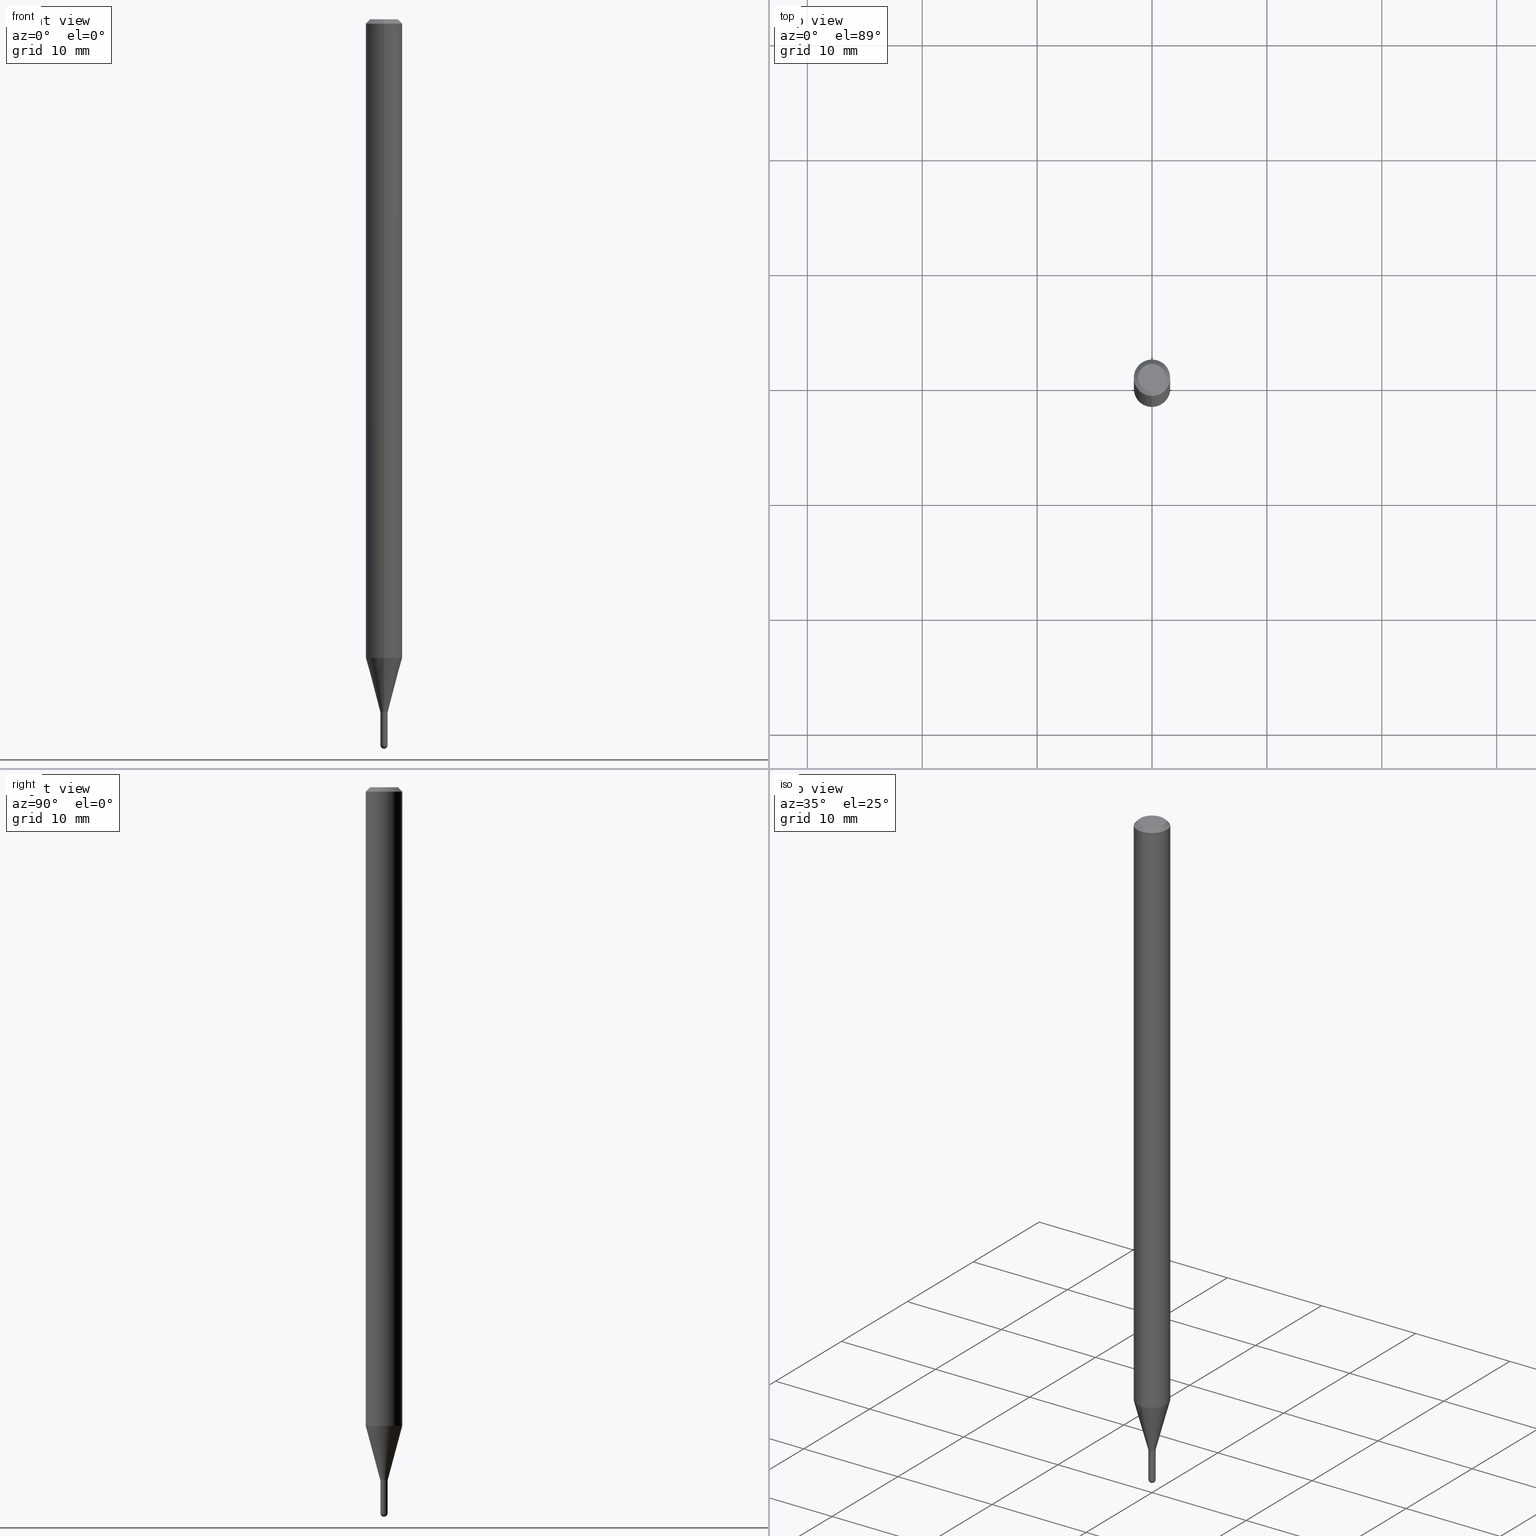
[diagram: canonical four-view strip — front | top / right | iso, engineering-drawing reading convention]
A machine part, canonical four-view strip (front | top / right | iso — engineering-drawing reading convention). The complete STEP part file that produces these views, byte-faithful:
ISO-10303-21;
HEADER;
FILE_DESCRIPTION (( 'STEP AP203' ),
    '1' );
FILE_NAME ('01502.STEP',
    '2024-03-07T19:35:38',
    ( '' ),
    ( '' ),
    'SwSTEP 2.0',
    'SolidWorks 2023',
    '' );
FILE_SCHEMA (( 'CONFIG_CONTROL_DESIGN' ));
ENDSEC;

DATA;
#1 = CARTESIAN_POINT ( 'NONE',  ( 5.807806707134409202E-29, -8.292528395313797988E-15, -2.375000000000000000 ) ) ;
#2 = CARTESIAN_POINT ( 'NONE',  ( 5.807806707134409202E-29, -8.292528395313797988E-15, -2.375000000000000000 ) ) ;
#3 = LOCAL_TIME ( 14, 35, 38.00000000000000000, #85 ) ;
#4 = DIRECTION ( 'NONE',  ( -2.445468806185136597E-29, 3.491481338843145583E-15, 1.000000000000000000 ) ) ;
#5 = AXIS2_PLACEMENT_3D ( 'NONE', #29, #234, #114 ) ;
#6 = EDGE_LOOP ( 'NONE', ( #388, #9, #479, #171 ) ) ;
#7 = FACE_OUTER_BOUND ( 'NONE', #48, .T. ) ;
#8 = EDGE_CURVE ( 'NONE', #420, #470, #237, .T. ) ;
#9 = ORIENTED_EDGE ( 'NONE', *, *, #344, .T. ) ;
#10 = FACE_OUTER_BOUND ( 'NONE', #236, .T. ) ;
#11 = ORIENTED_EDGE ( 'NONE', *, *, #89, .F. ) ;
#12 = AXIS2_PLACEMENT_3D ( 'NONE', #385, #101, #259 ) ;
#13 = VERTEX_POINT ( 'NONE', #184 ) ;
#14 = APPLICATION_PROTOCOL_DEFINITION ( 'international standard', 'config_control_design', 1994, #80 ) ;
#15 = VECTOR ( 'NONE', #79, 39.37007874015748143 ) ;
#16 = EDGE_CURVE ( 'NONE', #435, #504, #341, .T. ) ;
#17 = DIRECTION ( 'NONE',  ( 6.982962677686266711E-15, 1.000000000000000000, 0.000000000000000000 ) ) ;
#18 = CARTESIAN_POINT ( 'NONE',  ( 8.728703347113906385E-17, 0.01249999999999129932, -2.487500000000000266 ) ) ;
#19 = SECURITY_CLASSIFICATION_LEVEL ( 'unclassified' ) ;
#20 = CARTESIAN_POINT ( 'NONE',  ( 5.806584010985539182E-29, -8.290782599862154169E-15, -2.374500000000000277 ) ) ;
#21 = DATE_AND_TIME ( #498, #358 ) ;
#22 = FACE_OUTER_BOUND ( 'NONE', #287, .T. ) ;
#23 = CARTESIAN_POINT ( 'NONE',  ( 3.668088446611208352E-31, -5.237386354935034008E-17, -0.01500000000000000812 ) ) ;
#24 = CC_DESIGN_PERSON_AND_ORGANIZATION_ASSIGNMENT ( #459, #223, ( #151 ) ) ;
#25 = AXIS2_PLACEMENT_3D ( 'NONE', #23, #93, #224 ) ;
#26 = ORIENTED_EDGE ( 'NONE', *, *, #39, .T. ) ;
#27 = CARTESIAN_POINT ( 'NONE',  ( 6.113137536532105565E-29, -8.729468751357331880E-15, -2.500000000000000000 ) ) ;
#28 = ADVANCED_FACE ( 'NONE', ( #460 ), #141, .T. ) ;
#29 = CARTESIAN_POINT ( 'NONE',  ( 5.807806707134409202E-29, -8.292528395313797988E-15, -2.375000000000000000 ) ) ;
#30 = DIRECTION ( 'NONE',  ( -2.445392297740803594E-29, 3.491590903290020766E-15, 1.000000000000000000 ) ) ;
#31 = CARTESIAN_POINT ( 'NONE',  ( 3.668088446611208352E-31, -5.237386354935034008E-17, -0.01500000000000000812 ) ) ;
#32 = EDGE_LOOP ( 'NONE', ( #501, #215, #427, #185 ) ) ;
#33 = ORIENTED_EDGE ( 'NONE', *, *, #421, .F. ) ;
#34 = AXIS2_PLACEMENT_3D ( 'NONE', #134, #62, #98 ) ;
#35 = CARTESIAN_POINT ( 'NONE',  ( 8.526512829127010396E-17, 0.01199999999999171001, -2.375000000000000000 ) ) ;
#36 = ADVANCED_FACE ( 'NONE', ( #335 ), #300, .T. ) ;
#37 = DIRECTION ( 'NONE',  ( -6.982962677686265922E-15, -1.000000000000000000, 0.000000000000000000 ) ) ;
#38 = DIRECTION ( 'NONE',  ( -6.982962677686265922E-15, -1.000000000000000000, 0.000000000000000000 ) ) ;
#39 = EDGE_CURVE ( 'NONE', #486, #435, #337, .T. ) ;
#40 = CONICAL_SURFACE ( 'NONE', #222, 0.01249999999999992437, 0.2617993877991578455 ) ;
#41 = CIRCLE ( 'NONE', #50, 0.01249999999999996947 ) ;
#42 = DIRECTION ( 'NONE',  ( -1.000000000000000000, 6.982962677686265922E-15, -4.876176775795935793E-29 ) ) ;
#43 = AXIS2_PLACEMENT_3D ( 'NONE', #94, #449, #91 ) ;
#44 = PERSON_AND_ORGANIZATION_ROLE ( 'creator' ) ;
#45 = ORIENTED_EDGE ( 'NONE', *, *, #172, .F. ) ;
#46 = DIRECTION ( 'NONE',  ( -2.445468806185136597E-29, 3.491481338843145583E-15, 1.000000000000000000 ) ) ;
#47 = DIRECTION ( 'NONE',  ( -2.445392297740803875E-29, 3.491590903290020371E-15, 1.000000000000000000 ) ) ;
#48 = EDGE_LOOP ( 'NONE', ( #442, #507, #250, #154 ) ) ;
#49 = AXIS2_PLACEMENT_3D ( 'NONE', #247, #4, #203 ) ;
#50 = AXIS2_PLACEMENT_3D ( 'NONE', #201, #197, #389 ) ;
#51 = LINE ( 'NONE', #217, #147 ) ;
#52 =( LENGTH_UNIT ( ) NAMED_UNIT ( * ) SI_UNIT ( $, .METRE. ) );
#53 = CYLINDRICAL_SURFACE ( 'NONE', #375, 0.01250000000000000243 ) ;
#54 = EDGE_CURVE ( 'NONE', #230, #392, #475, .T. ) ;
#55 = AXIS2_PLACEMENT_3D ( 'NONE', #405, #46, #370 ) ;
#56 = CALENDAR_DATE ( 2024, 7, 3 ) ;
#57 = CARTESIAN_POINT ( 'NONE',  ( 6.082034697524054086E-29, -8.686590638871258861E-15, -2.487500000000000266 ) ) ;
#58 = CC_DESIGN_APPROVAL ( #148, ( #445 ) ) ;
#59 = ORIENTED_EDGE ( 'NONE', *, *, #312, .T. ) ;
#60 = CC_DESIGN_DATE_AND_TIME_ASSIGNMENT ( #21, #87, ( #151 ) ) ;
#61 = APPROVAL_DATE_TIME ( #422, #244 ) ;
#62 = DIRECTION ( 'NONE',  ( 2.445392297740803875E-29, -3.491590903290020371E-15, -1.000000000000000000 ) ) ;
#63 = PERSON ( 'UNSPECIFIED', 'UNSPECIFIED', 'UNSPECIFIED', ('UNSPECIFIED'), ('UNSPECIFIED'), ('UNSPECIFIED') ) ;
#64 = SPHERICAL_SURFACE ( 'NONE', #205, 0.01249999999999996947 ) ;
#65 = EDGE_CURVE ( 'NONE', #504, #435, #362, .T. ) ;
#66 = AXIS2_PLACEMENT_3D ( 'NONE', #302, #491, #264 ) ;
#67 = CLOSED_SHELL ( 'NONE', ( #162, #28, #433, #179, #326 ) ) ;
#68 = CARTESIAN_POINT ( 'NONE',  ( 0.000000000000000000, 0.000000000000000000, 0.000000000000000000 ) ) ;
#69 = CIRCLE ( 'NONE', #55, 0.01250000000000000243 ) ;
#70 = VECTOR ( 'NONE', #319, 39.37007874015748143 ) ;
#71 = ORIENTED_EDGE ( 'NONE', *, *, #82, .T. ) ;
#72 = FACE_OUTER_BOUND ( 'NONE', #324, .T. ) ;
#73 = DIRECTION ( 'NONE',  ( -2.445392297740803875E-29, 3.491590903290020371E-15, 1.000000000000000000 ) ) ;
#74 = ORIENTED_EDGE ( 'NONE', *, *, #451, .T. ) ;
#75 = DIRECTION ( 'NONE',  ( -2.445468806185136597E-29, 3.491481338843145583E-15, 1.000000000000000000 ) ) ;
#76 = EDGE_CURVE ( 'NONE', #447, #279, #133, .T. ) ;
#77 = DIRECTION ( 'NONE',  ( -2.445468806185136597E-29, 3.491481338843145583E-15, 1.000000000000000000 ) ) ;
#78 = LOCAL_TIME ( 14, 35, 38.00000000000000000, #455 ) ;
#79 = DIRECTION ( 'NONE',  ( 1.839019923739652380E-15, 0.2588190451025322858, 0.9659258262890650926 ) ) ;
#80 = APPLICATION_CONTEXT ( 'configuration controlled 3d designs of mechanical parts and assemblies' ) ;
#81 = DIRECTION ( 'NONE',  ( -6.982962677686265922E-15, -1.000000000000000000, 3.491590903290019977E-15 ) ) ;
#82 = EDGE_CURVE ( 'NONE', #279, #447, #371, .T. ) ;
#83 = VERTEX_POINT ( 'NONE', #18 ) ;
#84 = DIRECTION ( 'NONE',  ( -6.982962677686265922E-15, -1.000000000000000000, 0.000000000000000000 ) ) ;
#85 = COORDINATED_UNIVERSAL_TIME_OFFSET ( 5, 0, .BEHIND. ) ;
#86 = DIRECTION ( 'NONE',  ( -2.445392297740803594E-29, 3.491590903290020766E-15, 1.000000000000000000 ) ) ;
#87 = DATE_TIME_ROLE ( 'classification_date' ) ;
#88 = ORIENTED_EDGE ( 'NONE', *, *, #99, .F. ) ;
#89 = EDGE_CURVE ( 'NONE', #304, #266, #340, .T. ) ;
#90 = CARTESIAN_POINT ( 'NONE',  ( -8.728703347107781619E-17, -0.01249999999999992610, 4.364488629112499580E-17 ) ) ;
#91 = DIRECTION ( 'NONE',  ( 1.000000000000000000, 0.000000000000000000, 0.000000000000000000 ) ) ;
#92 = CC_DESIGN_PERSON_AND_ORGANIZATION_ASSIGNMENT ( #299, #174, ( #432 ) ) ;
#93 = DIRECTION ( 'NONE',  ( -2.445392297740803875E-29, 3.491590903290020371E-15, 1.000000000000000000 ) ) ;
#94 = CARTESIAN_POINT ( 'NONE',  ( 0.000000000000000000, 0.000000000000000000, 0.000000000000000000 ) ) ;
#95 = APPROVAL_PERSON_ORGANIZATION ( #123, #148, #186 ) ;
#96 = AXIS2_PLACEMENT_3D ( 'NONE', #402, #119, #213 ) ;
#97 = DIRECTION ( 'NONE',  ( -4.851104656540964275E-15, -0.7071067811865500152, -0.7071067811865450192 ) ) ;
#98 = DIRECTION ( 'NONE',  ( 6.982962677686265922E-15, 1.000000000000000000, -3.483106191921935554E-15 ) ) ;
#99 = EDGE_CURVE ( 'NONE', #495, #488, #245, .T. ) ;
#100 = PERSON_AND_ORGANIZATION ( #63, #485 ) ;
#101 = DIRECTION ( 'NONE',  ( -2.445392297740803875E-29, 3.491590903290020371E-15, 1.000000000000000000 ) ) ;
#102 = ORIENTED_EDGE ( 'NONE', *, *, #379, .F. ) ;
#103 = APPROVAL_ROLE ( '' ) ;
#104 = CARTESIAN_POINT ( 'NONE',  ( -8.728703347101971166E-17, -0.01250000000000821634, -2.375000000000000000 ) ) ;
#105 = CARTESIAN_POINT ( 'NONE',  ( -4.364351673553912750E-16, -0.06250000000000005551, -0.01499999999999979128 ) ) ;
#106 = ORIENTED_EDGE ( 'NONE', *, *, #252, .T. ) ;
#107 = CC_DESIGN_DATE_AND_TIME_ASSIGNMENT ( #446, #336, ( #330 ) ) ;
#108 = LINE ( 'NONE', #393, #461 ) ;
#109 = DIRECTION ( 'NONE',  ( 1.000000000000000000, -6.982962677686267499E-15, 4.876176775795936353E-29 ) ) ;
#110 = VECTOR ( 'NONE', #204, 39.37007874015748143 ) ;
#111 = EDGE_LOOP ( 'NONE', ( #45, #11, #246, #59 ) ) ;
#112 = AXIS2_PLACEMENT_3D ( 'NONE', #1, #315, #270 ) ;
#113 = ORIENTED_EDGE ( 'NONE', *, *, #363, .F. ) ;
#114 = DIRECTION ( 'NONE',  ( -6.982962677686265922E-15, -1.000000000000000000, 0.000000000000000000 ) ) ;
#115 = ADVANCED_FACE ( 'NONE', ( #22 ), #136, .T. ) ;
#116 = DIRECTION ( 'NONE',  ( -6.982962677686265922E-15, -1.000000000000000000, 3.483106191921935554E-15 ) ) ;
#117 = ORIENTED_EDGE ( 'NONE', *, *, #379, .T. ) ;
#118 = DIRECTION ( 'NONE',  ( 2.438088387897960049E-29, -3.491481338843145188E-15, -1.000000000000000000 ) ) ;
#119 = DIRECTION ( 'NONE',  ( -1.000000000000000000, 7.105427357601001070E-15, -4.926315508542082329E-29 ) ) ;
#120 = CC_DESIGN_APPROVAL ( #244, ( #151 ) ) ;
#121 = ORIENTED_EDGE ( 'NONE', *, *, #76, .F. ) ;
#122 = CARTESIAN_POINT ( 'NONE',  ( 5.807806707134409202E-29, -8.292528395313797988E-15, -2.375000000000000000 ) ) ;
#123 = PERSON_AND_ORGANIZATION ( #63, #485 ) ;
#124 = FACE_OUTER_BOUND ( 'NONE', #149, .T. ) ;
#125 = CALENDAR_DATE ( 2024, 7, 3 ) ;
#126 = AXIS2_PLACEMENT_3D ( 'NONE', #361, #163, #81 ) ;
#127 = ORIENTED_EDGE ( 'NONE', *, *, #226, .T. ) ;
#128 = LINE ( 'NONE', #481, #352 ) ;
#129 = EDGE_CURVE ( 'NONE', #486, #510, #273, .T. ) ;
#130 = ORIENTED_EDGE ( 'NONE', *, *, #482, .T. ) ;
#131 =( NAMED_UNIT ( * ) SI_UNIT ( $, .STERADIAN. ) SOLID_ANGLE_UNIT ( ) );
#132 = VERTEX_POINT ( 'NONE', #187 ) ;
#133 = CIRCLE ( 'NONE', #161, 0.01249999999999992610 ) ;
#134 = CARTESIAN_POINT ( 'NONE',  ( 3.668088446611208352E-31, -5.237386354935034008E-17, -0.01500000000000000812 ) ) ;
#135 = MECHANICAL_CONTEXT ( 'NONE', #80, 'mechanical' ) ;
#136 = CONICAL_SURFACE ( 'NONE', #34, 0.06250000000000000000, 0.7853981633974483900 ) ;
#137 = COORDINATED_UNIVERSAL_TIME_OFFSET ( 5, 0, .BEHIND. ) ;
#138 = ADVANCED_FACE ( 'NONE', ( #456 ), #240, .T. ) ;
#139 = DIRECTION ( 'NONE',  ( -2.445468806185136597E-29, 3.491481338843145583E-15, 1.000000000000000000 ) ) ;
#140 = PERSON_AND_ORGANIZATION ( #63, #485 ) ;
#141 = SPHERICAL_SURFACE ( 'NONE', #305, 0.01249999999999996947 ) ;
#142 = APPROVAL_STATUS ( 'not_yet_approved' ) ;
#143 = DIRECTION ( 'NONE',  ( 1.000000000000000000, -6.982962677686294321E-15, 0.000000000000000000 ) ) ;
#144 = ORIENTED_EDGE ( 'NONE', *, *, #156, .T. ) ;
#145 = CARTESIAN_POINT ( 'NONE',  ( 0.000000000000000000, 0.000000000000000000, 0.000000000000000000 ) ) ;
#146 = AXIS2_PLACEMENT_3D ( 'NONE', #122, #288, #37 ) ;
#147 = VECTOR ( 'NONE', #97, 39.37007874015748143 ) ;
#148 = APPROVAL ( #404, 'UNSPECIFIED' ) ;
#149 = EDGE_LOOP ( 'NONE', ( #159, #394, #342, #309 ) ) ;
#150 = CARTESIAN_POINT ( 'NONE',  ( -3.773273898774340269E-16, -0.04749999999999999362, 1.569954526256714019E-16 ) ) ;
#151 = SECURITY_CLASSIFICATION ( '', '', #19 ) ;
#152 = ORIENTED_EDGE ( 'NONE', *, *, #156, .F. ) ;
#153 = DIRECTION ( 'NONE',  ( -1.000000000000000000, 6.982962677686266711E-15, -4.883557194083112901E-29 ) ) ;
#154 = ORIENTED_EDGE ( 'NONE', *, *, #356, .F. ) ;
#155 = CARTESIAN_POINT ( 'NONE',  ( 0.000000000000000000, 0.000000000000000000, 0.000000000000000000 ) ) ;
#156 = EDGE_CURVE ( 'NONE', #470, #495, #296, .T. ) ;
#157 = ORIENTED_EDGE ( 'NONE', *, *, #500, .F. ) ;
#158 = CARTESIAN_POINT ( 'NONE',  ( 6.083103655385528181E-29, -8.685059830372324987E-15, -2.487500000000000266 ) ) ;
#159 = ORIENTED_EDGE ( 'NONE', *, *, #252, .F. ) ;
#160 = CARTESIAN_POINT ( 'NONE',  ( -0.01250000000000000069, -8.399846163092385345E-15, -2.375000000000000000 ) ) ;
#161 = AXIS2_PLACEMENT_3D ( 'NONE', #177, #454, #339 ) ;
#162 = ADVANCED_FACE ( 'NONE', ( #502 ), #53, .T. ) ;
#163 = DIRECTION ( 'NONE',  ( -2.445392297740803875E-29, 3.491590903290020371E-15, 1.000000000000000000 ) ) ;
#164 = CIRCLE ( 'NONE', #49, 0.01250000000000000069 ) ;
#165 = ORIENTED_EDGE ( 'NONE', *, *, #271, .F. ) ;
#166 = DIRECTION ( 'NONE',  ( -2.445468806185136597E-29, 3.491481338843145583E-15, 1.000000000000000000 ) ) ;
#167 = EDGE_LOOP ( 'NONE', ( #199, #157 ) ) ;
#168 = CARTESIAN_POINT ( 'NONE',  ( -4.364351673553382241E-16, -0.06250000000000764666, -2.188397459621561847 ) ) ;
#169 = PERSON_AND_ORGANIZATION_ROLE ( 'creator' ) ;
#170 = CARTESIAN_POINT ( 'NONE',  ( 5.807806707134409202E-29, -8.292528395313797988E-15, -2.375000000000000000 ) ) ;
#171 = ORIENTED_EDGE ( 'NONE', *, *, #39, .F. ) ;
#172 = EDGE_CURVE ( 'NONE', #266, #230, #51, .T. ) ;
#173 = AXIS2_PLACEMENT_3D ( 'NONE', #253, #227, #492 ) ;
#174 = PERSON_AND_ORGANIZATION_ROLE ( 'design_owner' ) ;
#175 = EDGE_LOOP ( 'NONE', ( #127, #74, #88, #152, #367 ) ) ;
#176 =( CONVERSION_BASED_UNIT ( 'INCH', #490 ) LENGTH_UNIT ( ) NAMED_UNIT ( #508 ) );
#177 = CARTESIAN_POINT ( 'NONE',  ( 5.806584010985539182E-29, -8.290782599862154169E-15, -2.374500000000000277 ) ) ;
#178 = DESIGN_CONTEXT ( 'detailed design', #412, 'design' ) ;
#179 = ADVANCED_FACE ( 'NONE', ( #380 ), #64, .T. ) ;
#180 = CARTESIAN_POINT ( 'NONE',  ( 2.664535259100932238E-16, 0.01249999999999163412, -2.375000000000000000 ) ) ;
#181 = DIRECTION ( 'NONE',  ( 1.000000000000000000, -6.982962677686267499E-15, 4.876176775795936353E-29 ) ) ;
#182 = AXIS2_PLACEMENT_3D ( 'NONE', #2, #281, #84 ) ;
#183 = APPROVAL_DATE_TIME ( #248, #425 ) ;
#184 = CARTESIAN_POINT ( 'NONE',  ( 8.704148513067008484E-17, 0.01199999999999171001, -2.375000000000000000 ) ) ;
#185 = ORIENTED_EDGE ( 'NONE', *, *, #312, .F. ) ;
#186 = APPROVAL_ROLE ( '' ) ;
#187 = CARTESIAN_POINT ( 'NONE',  ( -0.01250000000000000243, -8.399846163092385345E-15, -2.487500000000000266 ) ) ;
#188 = ORIENTED_EDGE ( 'NONE', *, *, #451, .F. ) ;
#189 = DIRECTION ( 'NONE',  ( -2.445468806185136877E-29, 3.491481338843145188E-15, 1.000000000000000000 ) ) ;
#190 = VECTOR ( 'NONE', #452, 39.37007874015748854 ) ;
#191 = ORIENTED_EDGE ( 'NONE', *, *, #239, .F. ) ;
#192 = PLANE ( 'NONE',  #366 ) ;
#193 = CIRCLE ( 'NONE', #414, 0.01250000000000000243 ) ;
#194 = ORIENTED_EDGE ( 'NONE', *, *, #401, .T. ) ;
#195 = FACE_OUTER_BOUND ( 'NONE', #167, .T. ) ;
#196 = ORIENTED_EDGE ( 'NONE', *, *, #54, .T. ) ;
#197 = DIRECTION ( 'NONE',  ( 1.000000000000000000, -6.982962677686265922E-15, 4.883557194083112340E-29 ) ) ;
#198 = DIRECTION ( 'NONE',  ( 6.982962677686266711E-15, 1.000000000000000000, 0.000000000000000000 ) ) ;
#199 = ORIENTED_EDGE ( 'NONE', *, *, #202, .F. ) ;
#200 = ORIENTED_EDGE ( 'NONE', *, *, #8, .T. ) ;
#201 = CARTESIAN_POINT ( 'NONE',  ( 6.082034697524054086E-29, -8.686590638871258861E-15, -2.487500000000000266 ) ) ;
#202 = EDGE_CURVE ( 'NONE', #331, #13, #390, .T. ) ;
#203 = DIRECTION ( 'NONE',  ( 1.000000000000000000, -6.982962677686294321E-15, 0.000000000000000000 ) ) ;
#204 = DIRECTION ( 'NONE',  ( -2.445468806185136877E-29, 3.491481338843145188E-15, 1.000000000000000000 ) ) ;
#205 = AXIS2_PLACEMENT_3D ( 'NONE', #229, #153, #198 ) ;
#206 = AXIS2_PLACEMENT_3D ( 'NONE', #155, #313, #506 ) ;
#207 = ORIENTED_EDGE ( 'NONE', *, *, #65, .F. ) ;
#208 = CARTESIAN_POINT ( 'NONE',  ( 4.440892098501164559E-16, 0.06249999999999995143, -0.01500000000000022669 ) ) ;
#209 = DATE_AND_TIME ( #496, #3 ) ;
#210 = ORIENTED_EDGE ( 'NONE', *, *, #99, .T. ) ;
#211 = CARTESIAN_POINT ( 'NONE',  ( -8.881784196995158866E-17, -0.01250000000000867258, -2.487500000000000266 ) ) ;
#212 = EDGE_CURVE ( 'NONE', #228, #83, #41, .T. ) ;
#213 = DIRECTION ( 'NONE',  ( -7.105427357601001070E-15, -1.000000000000000000, 0.000000000000000000 ) ) ;
#214 = AXIS2_PLACEMENT_3D ( 'NONE', #243, #444, #283 ) ;
#215 = ORIENTED_EDGE ( 'NONE', *, *, #65, .T. ) ;
#216 = APPLICATION_PROTOCOL_DEFINITION ( 'international standard', 'config_control_design', 1994, #412 ) ;
#217 = CARTESIAN_POINT ( 'NONE',  ( -4.287811248607203282E-16, -0.06250000000000005551, -0.01499999999999979128 ) ) ;
#218 = ADVANCED_FACE ( 'NONE', ( #511 ), #192, .F. ) ;
#219 = CARTESIAN_POINT ( 'NONE',  ( 5.807806707134409202E-29, -8.292528395313797988E-15, -2.375000000000000000 ) ) ;
#220 = APPROVAL_ROLE ( '' ) ;
#221 = CARTESIAN_POINT ( 'NONE',  ( 5.351490292154110661E-29, -7.640988662797635035E-15, -2.188397459621562291 ) ) ;
#222 = AXIS2_PLACEMENT_3D ( 'NONE', #328, #47, #327 ) ;
#223 = PERSON_AND_ORGANIZATION_ROLE ( 'classification_officer' ) ;
#224 = DIRECTION ( 'NONE',  ( -6.982962677686265922E-15, -1.000000000000000000, 3.483106191921935554E-15 ) ) ;
#225 = SHAPE_DEFINITION_REPRESENTATION ( #350, #374 ) ;
#226 = EDGE_CURVE ( 'NONE', #83, #132, #193, .T. ) ;
#227 = DIRECTION ( 'NONE',  ( -2.445392297740803875E-29, 3.491590903290020371E-15, 1.000000000000000000 ) ) ;
#228 = VERTEX_POINT ( 'NONE', #27 ) ;
#229 = CARTESIAN_POINT ( 'NONE',  ( 6.082034697524054086E-29, -8.686590638871258861E-15, -2.487500000000000266 ) ) ;
#230 = VERTEX_POINT ( 'NONE', #105 ) ;
#231 = LINE ( 'NONE', #391, #15 ) ;
#232 = VECTOR ( 'NONE', #249, 39.37007874015748143 ) ;
#233 = ADVANCED_FACE ( 'NONE', ( #72 ), #440, .T. ) ;
#234 = DIRECTION ( 'NONE',  ( -2.445392297740803875E-29, 3.491590903290020371E-15, 1.000000000000000000 ) ) ;
#235 = DIRECTION ( 'NONE',  ( 4.937700262164548042E-15, 0.7071067811865451302, -0.7071067811865499042 ) ) ;
#236 = EDGE_LOOP ( 'NONE', ( #210, #465 ) ) ;
#237 = CIRCLE ( 'NONE', #457, 0.01250000000000000243 ) ;
#238 = CARTESIAN_POINT ( 'NONE',  ( 4.364351673553919652E-16, 0.06249999999999995143, -0.01500000000000022669 ) ) ;
#239 = EDGE_CURVE ( 'NONE', #304, #392, #399, .T. ) ;
#240 = CONICAL_SURFACE ( 'NONE', #262, 0.06250000000000000000, 0.7853981633974483900 ) ;
#241 = CYLINDRICAL_SURFACE ( 'NONE', #126, 0.06250000000000000000 ) ;
#242 = CC_DESIGN_PERSON_AND_ORGANIZATION_ASSIGNMENT ( #418, #44, ( #330 ) ) ;
#243 = CARTESIAN_POINT ( 'NONE',  ( 2.165423070279727743E-46, -3.091843996134331938E-32, -8.855115280604555853E-18 ) ) ;
#244 = APPROVAL ( #142, 'UNSPECIFIED' ) ;
#245 = CIRCLE ( 'NONE', #354, 0.01250000000000000069 ) ;
#246 = ORIENTED_EDGE ( 'NONE', *, *, #239, .T. ) ;
#247 = CARTESIAN_POINT ( 'NONE',  ( 5.807988414689700538E-29, -8.292268179752471696E-15, -2.375000000000000000 ) ) ;
#248 = DATE_AND_TIME ( #56, #78 ) ;
#249 = DIRECTION ( 'NONE',  ( -2.445392297740803594E-29, 3.491590903290020766E-15, 1.000000000000000000 ) ) ;
#250 = ORIENTED_EDGE ( 'NONE', *, *, #54, .F. ) ;
#251 = LINE ( 'NONE', #90, #232 ) ;
#252 = EDGE_CURVE ( 'NONE', #13, #279, #505, .T. ) ;
#253 = CARTESIAN_POINT ( 'NONE',  ( 5.807806707134409202E-29, -8.292528395313797988E-15, -2.375000000000000000 ) ) ;
#254 = UNCERTAINTY_MEASURE_WITH_UNIT (LENGTH_MEASURE( 1.000000000000000082E-05 ), #176, 'distance_accuracy_value', 'NONE');
#255 = VECTOR ( 'NONE', #86, 39.37007874015748143 ) ;
#256 = AXIS2_PLACEMENT_3D ( 'NONE', #291, #166, #448 ) ;
#257 = DIRECTION ( 'NONE',  ( 2.445392297740803875E-29, -3.491590903290020371E-15, -1.000000000000000000 ) ) ;
#258 = COORDINATED_UNIVERSAL_TIME_OFFSET ( 5, 0, .BEHIND. ) ;
#259 = DIRECTION ( 'NONE',  ( -6.982962677686265922E-15, -1.000000000000000000, 4.370956789862821150E-15 ) ) ;
#260 = ADVANCED_FACE ( 'NONE', ( #195 ), #359, .F. ) ;
#261 = CONICAL_SURFACE ( 'NONE', #182, 0.01249999999999992437, 0.2617993877991578455 ) ;
#262 = AXIS2_PLACEMENT_3D ( 'NONE', #308, #257, #343 ) ;
#263 = CALENDAR_DATE ( 2024, 7, 3 ) ;
#264 = DIRECTION ( 'NONE',  ( -6.982962677686266711E-15, -1.000000000000000000, 3.491590903290020766E-15 ) ) ;
#265 = LOCAL_TIME ( 14, 35, 38.00000000000000000, #137 ) ;
#266 = VERTEX_POINT ( 'NONE', #150 ) ;
#267 = FACE_OUTER_BOUND ( 'NONE', #274, .T. ) ;
#268 = ORIENTED_EDGE ( 'NONE', *, *, #172, .T. ) ;
#269 = AXIS2_PLACEMENT_3D ( 'NONE', #20, #423, #497 ) ;
#270 = DIRECTION ( 'NONE',  ( -6.982962677686265922E-15, -1.000000000000000000, 3.491590903290020766E-15 ) ) ;
#271 = EDGE_CURVE ( 'NONE', #510, #279, #108, .T. ) ;
#272 = CARTESIAN_POINT ( 'NONE',  ( 3.316907271900976096E-16, 0.04749999999999999362, -1.702781255465782234E-16 ) ) ;
#273 = CIRCLE ( 'NONE', #173, 0.01249999999999992437 ) ;
#274 = EDGE_LOOP ( 'NONE', ( #188, #130, #200, #144, #329 ) ) ;
#275 = ORIENTED_EDGE ( 'NONE', *, *, #421, .T. ) ;
#276 = APPROVAL_PERSON_ORGANIZATION ( #383, #244, #103 ) ;
#277 = DIRECTION ( 'NONE',  ( -6.982962677686266711E-15, -1.000000000000000000, 3.491590903290020371E-15 ) ) ;
#278 = CYLINDRICAL_SURFACE ( 'NONE', #282, 0.01250000000000000243 ) ;
#279 = VERTEX_POINT ( 'NONE', #509 ) ;
#280 = CLOSED_SHELL ( 'NONE', ( #293, #233, #115, #395, #408, #467, #36, #138, #218, #260, #439, #286 ) ) ;
#281 = DIRECTION ( 'NONE',  ( -2.445392297740803875E-29, 3.491590903290020371E-15, 1.000000000000000000 ) ) ;
#282 = AXIS2_PLACEMENT_3D ( 'NONE', #68, #77, #109 ) ;
#283 = DIRECTION ( 'NONE',  ( -6.982962677686266711E-15, -1.000000000000000000, 3.491590903290020766E-15 ) ) ;
#284 = ORIENTED_EDGE ( 'NONE', *, *, #226, .F. ) ;
#285 = CARTESIAN_POINT ( 'NONE',  ( -0.01250000000000000243, 8.881784197001254049E-17, -6.148668862818633278E-31 ) ) ;
#286 = ADVANCED_FACE ( 'NONE', ( #466 ), #349, .F. ) ;
#287 = EDGE_LOOP ( 'NONE', ( #33, #268, #196, #191 ) ) ;
#288 = DIRECTION ( 'NONE',  ( -2.445392297740803875E-29, 3.491590903290020371E-15, 1.000000000000000000 ) ) ;
#289 = APPROVAL_PERSON_ORGANIZATION ( #376, #425, #220 ) ;
#290 = ORIENTED_EDGE ( 'NONE', *, *, #212, .T. ) ;
#291 = CARTESIAN_POINT ( 'NONE',  ( 6.083103655385528181E-29, -8.685059830372324987E-15, -2.487500000000000266 ) ) ;
#292 = ORIENTED_EDGE ( 'NONE', *, *, #8, .F. ) ;
#293 = ADVANCED_FACE ( 'NONE', ( #310 ), #464, .F. ) ;
#294 = ORIENTED_EDGE ( 'NONE', *, *, #76, .T. ) ;
#295 =( NAMED_UNIT ( * ) PLANE_ANGLE_UNIT ( ) SI_UNIT ( $, .RADIAN. ) );
#296 = LINE ( 'NONE', #417, #322 ) ;
#297 = CIRCLE ( 'NONE', #429, 0.06250000000000000000 ) ;
#298 = CIRCLE ( 'NONE', #430, 0.01200000000000000198 ) ;
#299 = PERSON_AND_ORGANIZATION ( #63, #485 ) ;
#300 = CYLINDRICAL_SURFACE ( 'NONE', #409, 0.06250000000000000000 ) ;
#301 = PERSON_AND_ORGANIZATION_ROLE ( 'design_supplier' ) ;
#302 = CARTESIAN_POINT ( 'NONE',  ( 2.165423070279727743E-46, -3.091843996134331938E-32, -8.855115280604555853E-18 ) ) ;
#303 = EDGE_CURVE ( 'NONE', #504, #392, #428, .T. ) ;
#304 = VERTEX_POINT ( 'NONE', #396 ) ;
#305 = AXIS2_PLACEMENT_3D ( 'NONE', #57, #450, #17 ) ;
#306 = EDGE_LOOP ( 'NONE', ( #113, #290, #483, #292 ) ) ;
#307 = COORDINATED_UNIVERSAL_TIME_OFFSET ( 5, 0, .BEHIND. ) ;
#308 = CARTESIAN_POINT ( 'NONE',  ( 3.668088446611208352E-31, -5.237386354935034008E-17, -0.01500000000000000812 ) ) ;
#309 = ORIENTED_EDGE ( 'NONE', *, *, #82, .F. ) ;
#310 = FACE_OUTER_BOUND ( 'NONE', #355, .T. ) ;
#311 = EDGE_LOOP ( 'NONE', ( #165, #369, #117, #294 ) ) ;
#312 = EDGE_CURVE ( 'NONE', #392, #230, #297, .T. ) ;
#313 = DIRECTION ( 'NONE',  ( -2.445392297740803875E-29, 3.491590903290020371E-15, 1.000000000000000000 ) ) ;
#314 = ORIENTED_EDGE ( 'NONE', *, *, #271, .T. ) ;
#315 = DIRECTION ( 'NONE',  ( -2.445392297740803314E-29, 3.491590903290020766E-15, 1.000000000000000000 ) ) ;
#316 = EDGE_LOOP ( 'NONE', ( #345, #275 ) ) ;
#317 = MANIFOLD_SOLID_BREP ( 'Body-Move/Copy2[2]', #280 ) ;
#318 = CARTESIAN_POINT ( 'NONE',  ( 0.000000000000000000, 0.000000000000000000, 0.000000000000000000 ) ) ;
#319 = DIRECTION ( 'NONE',  ( -2.445392297740803594E-29, 3.491590903290020766E-15, 1.000000000000000000 ) ) ;
#320 = CARTESIAN_POINT ( 'NONE',  ( -4.364351673553916201E-16, -0.06250000000000000000, 2.182244314556262486E-16 ) ) ;
#321 = LINE ( 'NONE', #320, #255 ) ;
#322 = VECTOR ( 'NONE', #189, 39.37007874015748143 ) ;
#323 = CIRCLE ( 'NONE', #96, 0.01249999999999996947 ) ;
#324 = EDGE_LOOP ( 'NONE', ( #411, #106, #121, #512 ) ) ;
#325 = DIRECTION ( 'NONE',  ( -2.445392297740803875E-29, 3.491590903290020371E-15, 1.000000000000000000 ) ) ;
#326 = ADVANCED_FACE ( 'NONE', ( #267 ), #278, .T. ) ;
#327 = DIRECTION ( 'NONE',  ( -6.982962677686265922E-15, -1.000000000000000000, 0.000000000000000000 ) ) ;
#328 = CARTESIAN_POINT ( 'NONE',  ( 5.807806707134409202E-29, -8.292528395313797988E-15, -2.375000000000000000 ) ) ;
#329 = ORIENTED_EDGE ( 'NONE', *, *, #462, .F. ) ;
#330 = PRODUCT_DEFINITION ( 'UNKNOWN', '', #445, #178 ) ;
#331 = VERTEX_POINT ( 'NONE', #436 ) ;
#332 = APPROVAL_STATUS ( 'not_yet_approved' ) ;
#333 = CARTESIAN_POINT ( 'NONE',  ( 5.807988414689700538E-29, -8.292268179752471696E-15, -2.375000000000000000 ) ) ;
#334 = CC_DESIGN_PERSON_AND_ORGANIZATION_ASSIGNMENT ( #140, #301, ( #445 ) ) ;
#335 = FACE_OUTER_BOUND ( 'NONE', #32, .T. ) ;
#336 = DATE_TIME_ROLE ( 'creation_date' ) ;
#337 = LINE ( 'NONE', #104, #190 ) ;
#338 = APPROVAL_DATE_TIME ( #209, #148 ) ;
#339 = DIRECTION ( 'NONE',  ( -6.982962677686266711E-15, -1.000000000000000000, 0.000000000000000000 ) ) ;
#340 = CIRCLE ( 'NONE', #66, 0.04749999999999999362 ) ;
#341 = CIRCLE ( 'NONE', #12, 0.06250000000000000000 ) ;
#342 = ORIENTED_EDGE ( 'NONE', *, *, #386, .T. ) ;
#343 = DIRECTION ( 'NONE',  ( 6.982962677686265922E-15, 1.000000000000000000, -3.483106191921935554E-15 ) ) ;
#344 = EDGE_CURVE ( 'NONE', #510, #504, #231, .T. ) ;
#345 = ORIENTED_EDGE ( 'NONE', *, *, #89, .T. ) ;
#346 = AXIS2_PLACEMENT_3D ( 'NONE', #318, #471, #277 ) ;
#347 = DIRECTION ( 'NONE',  ( 6.982962677686265922E-15, 1.000000000000000000, -3.491590903290020766E-15 ) ) ;
#348 = CC_DESIGN_PERSON_AND_ORGANIZATION_ASSIGNMENT ( #100, #169, ( #445 ) ) ;
#349 = CYLINDRICAL_SURFACE ( 'NONE', #206, 0.01249999999999992610 ) ;
#350 = PRODUCT_DEFINITION_SHAPE ( 'NONE', 'NONE',  #330 ) ;
#351 = DIRECTION ( 'NONE',  ( 5.024295867788190974E-15, 0.7071067811865681119, 0.7071067811865270336 ) ) ;
#352 = VECTOR ( 'NONE', #443, 39.37007874015748143 ) ;
#353 = DIRECTION ( 'NONE',  ( -6.982962677686265922E-15, -1.000000000000000000, 0.000000000000000000 ) ) ;
#354 = AXIS2_PLACEMENT_3D ( 'NONE', #333, #139, #143 ) ;
#355 = EDGE_LOOP ( 'NONE', ( #357, #314, #71, #102 ) ) ;
#356 = EDGE_CURVE ( 'NONE', #435, #230, #321, .T. ) ;
#357 = ORIENTED_EDGE ( 'NONE', *, *, #401, .F. ) ;
#358 = LOCAL_TIME ( 14, 35, 38.00000000000000000, #258 ) ;
#359 = PLANE ( 'NONE',  #112 ) ;
#360 = PRODUCT_RELATED_PRODUCT_CATEGORY ( 'detail', '', ( #432 ) ) ;
#361 = CARTESIAN_POINT ( 'NONE',  ( 0.000000000000000000, 0.000000000000000000, 0.000000000000000000 ) ) ;
#362 = CIRCLE ( 'NONE', #387, 0.06250000000000000000 ) ;
#363 = EDGE_CURVE ( 'NONE', #228, #420, #323, .T. ) ;
#364 = CARTESIAN_POINT ( 'NONE',  ( -8.728703347101971166E-17, -0.01250000000000821634, -2.375000000000000000 ) ) ;
#365 = LOCAL_TIME ( 14, 35, 38.00000000000000000, #307 ) ;
#366 = AXIS2_PLACEMENT_3D ( 'NONE', #272, #434, #347 ) ;
#367 = ORIENTED_EDGE ( 'NONE', *, *, #489, .T. ) ;
#368 = PLANE ( 'NONE',  #503 ) ;
#369 = ORIENTED_EDGE ( 'NONE', *, *, #129, .F. ) ;
#370 = DIRECTION ( 'NONE',  ( 1.000000000000000000, -6.982962677686292743E-15, 0.000000000000000000 ) ) ;
#371 = CIRCLE ( 'NONE', #269, 0.01249999999999992610 ) ;
#372 = ORIENTED_EDGE ( 'NONE', *, *, #344, .F. ) ;
#373 = DIRECTION ( 'NONE',  ( -2.445392297740803875E-29, 3.491590903290020371E-15, 1.000000000000000000 ) ) ;
#374 = ADVANCED_BREP_SHAPE_REPRESENTATION ( '01502', ( #477, #317, #43 ), #382 ) ;
#375 = AXIS2_PLACEMENT_3D ( 'NONE', #145, #413, #181 ) ;
#376 = PERSON_AND_ORGANIZATION ( #63, #485 ) ;
#377 = DIRECTION ( 'NONE',  ( -6.982962677686265922E-15, -1.000000000000000000, 3.491590903290019977E-15 ) ) ;
#378 = DIRECTION ( 'NONE',  ( -2.445392297740803875E-29, 3.491590903290020371E-15, 1.000000000000000000 ) ) ;
#379 = EDGE_CURVE ( 'NONE', #486, #447, #251, .T. ) ;
#380 = FACE_OUTER_BOUND ( 'NONE', #306, .T. ) ;
#381 = CIRCLE ( 'NONE', #146, 0.01249999999999992437 ) ;
#382 =( GEOMETRIC_REPRESENTATION_CONTEXT ( 3 ) GLOBAL_UNCERTAINTY_ASSIGNED_CONTEXT ( ( #254 ) ) GLOBAL_UNIT_ASSIGNED_CONTEXT ( ( #176, #295, #131 ) ) REPRESENTATION_CONTEXT ( 'NONE', 'WORKASPACE' ) );
#383 = PERSON_AND_ORGANIZATION ( #63, #485 ) ;
#384 = DIRECTION ( 'NONE',  ( -6.982962677686265922E-15, -1.000000000000000000, 4.370956789862821150E-15 ) ) ;
#385 = CARTESIAN_POINT ( 'NONE',  ( 5.351490292154110661E-29, -7.640988662797635035E-15, -2.188397459621562291 ) ) ;
#386 = EDGE_CURVE ( 'NONE', #331, #447, #128, .T. ) ;
#387 = AXIS2_PLACEMENT_3D ( 'NONE', #221, #499, #384 ) ;
#388 = ORIENTED_EDGE ( 'NONE', *, *, #129, .T. ) ;
#389 = DIRECTION ( 'NONE',  ( 6.982962677686265922E-15, 1.000000000000000000, 0.000000000000000000 ) ) ;
#390 = CIRCLE ( 'NONE', #493, 0.01200000000000000198 ) ;
#391 = CARTESIAN_POINT ( 'NONE',  ( 8.881784197007005338E-17, 0.01249999999999163239, -2.375000000000000000 ) ) ;
#392 = VERTEX_POINT ( 'NONE', #208 ) ;
#393 = CARTESIAN_POINT ( 'NONE',  ( 8.881784197001198582E-17, 0.01249999999999992610, -4.364488629112499580E-17 ) ) ;
#394 = ORIENTED_EDGE ( 'NONE', *, *, #500, .T. ) ;
#395 = ADVANCED_FACE ( 'NONE', ( #7 ), #241, .T. ) ;
#396 = CARTESIAN_POINT ( 'NONE',  ( 3.840629472727447874E-16, 0.04749999999999999362, -1.747056831868805136E-16 ) ) ;
#397 = EDGE_LOOP ( 'NONE', ( #372, #194, #26, #207 ) ) ;
#398 = CC_DESIGN_APPROVAL ( #425, ( #330 ) ) ;
#399 = LINE ( 'NONE', #238, #453 ) ;
#400 = CARTESIAN_POINT ( 'NONE',  ( -8.728703347102003213E-17, -0.01250000000000825798, -2.374500000000000277 ) ) ;
#401 = EDGE_CURVE ( 'NONE', #510, #486, #381, .T. ) ;
#402 = CARTESIAN_POINT ( 'NONE',  ( 6.082034697524054086E-29, -8.686590638871258861E-15, -2.487500000000000266 ) ) ;
#403 = CARTESIAN_POINT ( 'NONE',  ( 0.01250000000000000243, -8.575951038533477464E-15, -2.487500000000000266 ) ) ;
#404 = APPROVAL_STATUS ( 'not_yet_approved' ) ;
#405 = CARTESIAN_POINT ( 'NONE',  ( 6.083103655385528181E-29, -8.685059830372324987E-15, -2.487500000000000266 ) ) ;
#406 = EDGE_LOOP ( 'NONE', ( #474, #458, #424, #284 ) ) ;
#407 = CARTESIAN_POINT ( 'NONE',  ( 0.01250000000000000069, -8.379555213223550029E-15, -2.375000000000000000 ) ) ;
#408 = ADVANCED_FACE ( 'NONE', ( #478 ), #261, .T. ) ;
#409 = AXIS2_PLACEMENT_3D ( 'NONE', #416, #378, #377 ) ;
#410 = CC_DESIGN_SECURITY_CLASSIFICATION ( #151, ( #445 ) ) ;
#411 = ORIENTED_EDGE ( 'NONE', *, *, #202, .T. ) ;
#412 = APPLICATION_CONTEXT ( 'configuration controlled 3d designs of mechanical parts and assemblies' ) ;
#413 = DIRECTION ( 'NONE',  ( -2.445468806185136597E-29, 3.491481338843145583E-15, 1.000000000000000000 ) ) ;
#414 = AXIS2_PLACEMENT_3D ( 'NONE', #158, #431, #463 ) ;
#415 = CIRCLE ( 'NONE', #256, 0.01250000000000000243 ) ;
#416 = CARTESIAN_POINT ( 'NONE',  ( 0.000000000000000000, 0.000000000000000000, 0.000000000000000000 ) ) ;
#417 = CARTESIAN_POINT ( 'NONE',  ( 0.01250000000000000243, -8.728703347107835853E-17, 6.095220969744921493E-31 ) ) ;
#418 = PERSON_AND_ORGANIZATION ( #63, #485 ) ;
#419 = DIRECTION ( 'NONE',  ( 1.000000000000000000, -6.982962677686292743E-15, 0.000000000000000000 ) ) ;
#420 = VERTEX_POINT ( 'NONE', #211 ) ;
#421 = EDGE_CURVE ( 'NONE', #266, #304, #437, .T. ) ;
#422 = DATE_AND_TIME ( #263, #265 ) ;
#423 = DIRECTION ( 'NONE',  ( -2.445392297740803875E-29, 3.491590903290020371E-15, 1.000000000000000000 ) ) ;
#424 = ORIENTED_EDGE ( 'NONE', *, *, #482, .F. ) ;
#425 = APPROVAL ( #332, 'UNSPECIFIED' ) ;
#426 = CARTESIAN_POINT ( 'NONE',  ( 4.440892098500625669E-16, 0.06250000000000000000, -2.182244314556262486E-16 ) ) ;
#427 = ORIENTED_EDGE ( 'NONE', *, *, #356, .T. ) ;
#428 = LINE ( 'NONE', #426, #70 ) ;
#429 = AXIS2_PLACEMENT_3D ( 'NONE', #31, #473, #116 ) ;
#430 = AXIS2_PLACEMENT_3D ( 'NONE', #476, #325, #480 ) ;
#431 = DIRECTION ( 'NONE',  ( -2.445468806185136597E-29, 3.491481338843145583E-15, 1.000000000000000000 ) ) ;
#432 = PRODUCT ( '01502', '01502', '', ( #135 ) ) ;
#433 = ADVANCED_FACE ( 'NONE', ( #10 ), #368, .F. ) ;
#434 = DIRECTION ( 'NONE',  ( 2.445392297740803314E-29, -3.491590903290020766E-15, -1.000000000000000000 ) ) ;
#435 = VERTEX_POINT ( 'NONE', #168 ) ;
#436 = CARTESIAN_POINT ( 'NONE',  ( -8.379555213217712360E-17, -0.01200000000000829396, -2.375000000000000000 ) ) ;
#437 = CIRCLE ( 'NONE', #214, 0.04749999999999999362 ) ;
#438 = CARTESIAN_POINT ( 'NONE',  ( 8.728703347113640144E-17, 0.01249999999999170872, -2.375000000000000000 ) ) ;
#439 = ADVANCED_FACE ( 'NONE', ( #124 ), #469, .T. ) ;
#440 = CONICAL_SURFACE ( 'NONE', #5, 0.01200000000000000198, 0.7853981633974739252 ) ;
#441 = LINE ( 'NONE', #285, #110 ) ;
#442 = ORIENTED_EDGE ( 'NONE', *, *, #16, .T. ) ;
#443 = DIRECTION ( 'NONE',  ( -4.937700262164674260E-15, -0.7071067811865632269, 0.7071067811865319186 ) ) ;
#444 = DIRECTION ( 'NONE',  ( -2.445392297740803875E-29, 3.491590903290020371E-15, 1.000000000000000000 ) ) ;
#445 = PRODUCT_DEFINITION_FORMATION_WITH_SPECIFIED_SOURCE ( 'ANY', '', #432, .NOT_KNOWN. ) ;
#446 = DATE_AND_TIME ( #125, #365 ) ;
#447 = VERTEX_POINT ( 'NONE', #400 ) ;
#448 = DIRECTION ( 'NONE',  ( 1.000000000000000000, -6.982962677686292743E-15, 0.000000000000000000 ) ) ;
#449 = DIRECTION ( 'NONE',  ( 0.000000000000000000, 0.000000000000000000, 1.000000000000000000 ) ) ;
#450 = DIRECTION ( 'NONE',  ( -1.000000000000000000, 6.982962677686266711E-15, -4.883557194083112901E-29 ) ) ;
#451 = EDGE_CURVE ( 'NONE', #132, #488, #441, .T. ) ;
#452 = DIRECTION ( 'NONE',  ( -1.807323732225381415E-15, -0.2588190451025255134, 0.9659258262890669799 ) ) ;
#453 = VECTOR ( 'NONE', #235, 39.37007874015748143 ) ;
#454 = DIRECTION ( 'NONE',  ( -2.445392297740803875E-29, 3.491590903290020371E-15, 1.000000000000000000 ) ) ;
#455 = COORDINATED_UNIVERSAL_TIME_OFFSET ( 5, 0, .BEHIND. ) ;
#456 = FACE_OUTER_BOUND ( 'NONE', #111, .T. ) ;
#457 = AXIS2_PLACEMENT_3D ( 'NONE', #472, #75, #419 ) ;
#458 = ORIENTED_EDGE ( 'NONE', *, *, #363, .T. ) ;
#459 = PERSON_AND_ORGANIZATION ( #63, #485 ) ;
#460 = FACE_OUTER_BOUND ( 'NONE', #406, .T. ) ;
#461 = VECTOR ( 'NONE', #30, 39.37007874015748143 ) ;
#462 = EDGE_CURVE ( 'NONE', #488, #495, #164, .T. ) ;
#463 = DIRECTION ( 'NONE',  ( 1.000000000000000000, -6.982962677686292743E-15, 0.000000000000000000 ) ) ;
#464 = CYLINDRICAL_SURFACE ( 'NONE', #346, 0.01249999999999992610 ) ;
#465 = ORIENTED_EDGE ( 'NONE', *, *, #462, .T. ) ;
#466 = FACE_OUTER_BOUND ( 'NONE', #311, .T. ) ;
#467 = ADVANCED_FACE ( 'NONE', ( #484 ), #40, .T. ) ;
#468 = AXIS2_PLACEMENT_3D ( 'NONE', #170, #373, #38 ) ;
#469 = CONICAL_SURFACE ( 'NONE', #468, 0.01200000000000000198, 0.7853981633974739252 ) ;
#470 = VERTEX_POINT ( 'NONE', #403 ) ;
#471 = DIRECTION ( 'NONE',  ( -2.445392297740803875E-29, 3.491590903290020371E-15, 1.000000000000000000 ) ) ;
#472 = CARTESIAN_POINT ( 'NONE',  ( 6.083103655385528181E-29, -8.685059830372324987E-15, -2.487500000000000266 ) ) ;
#473 = DIRECTION ( 'NONE',  ( -2.445392297740803875E-29, 3.491590903290020371E-15, 1.000000000000000000 ) ) ;
#474 = ORIENTED_EDGE ( 'NONE', *, *, #212, .F. ) ;
#475 = CIRCLE ( 'NONE', #25, 0.06250000000000000000 ) ;
#476 = CARTESIAN_POINT ( 'NONE',  ( 5.807806707134409202E-29, -8.292528395313797988E-15, -2.375000000000000000 ) ) ;
#477 = MANIFOLD_SOLID_BREP ( 'Body-Move/Copy2[1]', #67 ) ;
#478 = FACE_OUTER_BOUND ( 'NONE', #6, .T. ) ;
#479 = ORIENTED_EDGE ( 'NONE', *, *, #16, .F. ) ;
#480 = DIRECTION ( 'NONE',  ( -6.982962677686265922E-15, -1.000000000000000000, 0.000000000000000000 ) ) ;
#481 = CARTESIAN_POINT ( 'NONE',  ( -8.379555213217712360E-17, -0.01200000000000829396, -2.375000000000000000 ) ) ;
#482 = EDGE_CURVE ( 'NONE', #132, #420, #69, .T. ) ;
#483 = ORIENTED_EDGE ( 'NONE', *, *, #489, .F. ) ;
#484 = FACE_OUTER_BOUND ( 'NONE', #397, .T. ) ;
#485 = ORGANIZATION ( 'UNSPECIFIED', 'UNSPECIFIED', '' ) ;
#486 = VERTEX_POINT ( 'NONE', #364 ) ;
#487 = CARTESIAN_POINT ( 'NONE',  ( 4.440892098501159629E-16, 0.06249999999999236028, -2.188397459621562735 ) ) ;
#488 = VERTEX_POINT ( 'NONE', #160 ) ;
#489 = EDGE_CURVE ( 'NONE', #470, #83, #415, .T. ) ;
#490 = LENGTH_MEASURE_WITH_UNIT ( LENGTH_MEASURE( 0.02539999999999999897 ), #52 );
#491 = DIRECTION ( 'NONE',  ( -2.445392297740803875E-29, 3.491590903290020371E-15, 1.000000000000000000 ) ) ;
#492 = DIRECTION ( 'NONE',  ( -6.982962677686265922E-15, -1.000000000000000000, 0.000000000000000000 ) ) ;
#493 = AXIS2_PLACEMENT_3D ( 'NONE', #219, #73, #353 ) ;
#494 = VECTOR ( 'NONE', #351, 39.37007874015748143 ) ;
#495 = VERTEX_POINT ( 'NONE', #407 ) ;
#496 = CALENDAR_DATE ( 2024, 7, 3 ) ;
#497 = DIRECTION ( 'NONE',  ( -6.982962677686266711E-15, -1.000000000000000000, 0.000000000000000000 ) ) ;
#498 = CALENDAR_DATE ( 2024, 7, 3 ) ;
#499 = DIRECTION ( 'NONE',  ( -2.445392297740803875E-29, 3.491590903290020371E-15, 1.000000000000000000 ) ) ;
#500 = EDGE_CURVE ( 'NONE', #13, #331, #298, .T. ) ;
#501 = ORIENTED_EDGE ( 'NONE', *, *, #303, .F. ) ;
#502 = FACE_OUTER_BOUND ( 'NONE', #175, .T. ) ;
#503 = AXIS2_PLACEMENT_3D ( 'NONE', #438, #118, #42 ) ;
#504 = VERTEX_POINT ( 'NONE', #487 ) ;
#505 = LINE ( 'NONE', #35, #494 ) ;
#506 = DIRECTION ( 'NONE',  ( -6.982962677686266711E-15, -1.000000000000000000, 3.491590903290020371E-15 ) ) ;
#507 = ORIENTED_EDGE ( 'NONE', *, *, #303, .T. ) ;
#508 = DIMENSIONAL_EXPONENTS ( 1.000000000000000000, 0.000000000000000000, 0.000000000000000000, 0.000000000000000000, 0.000000000000000000, 0.000000000000000000, 0.000000000000000000 ) ;
#509 = CARTESIAN_POINT ( 'NONE',  ( 8.881784197006975756E-17, 0.01249999999999159422, -2.374500000000000277 ) ) ;
#510 = VERTEX_POINT ( 'NONE', #180 ) ;
#511 = FACE_OUTER_BOUND ( 'NONE', #316, .T. ) ;
#512 = ORIENTED_EDGE ( 'NONE', *, *, #386, .F. ) ;
ENDSEC;
END-ISO-10303-21;
